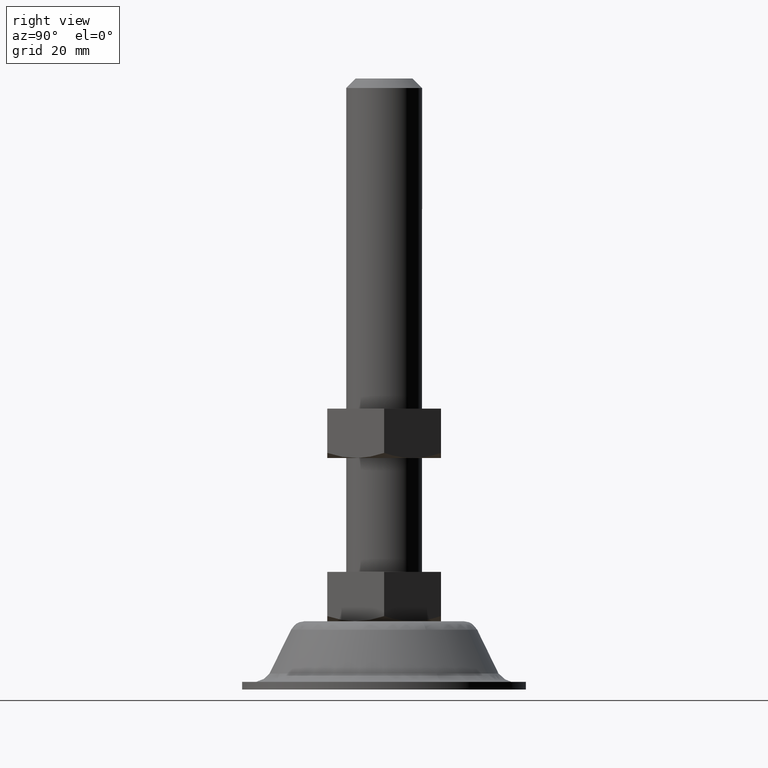
[diagram: clean part render]
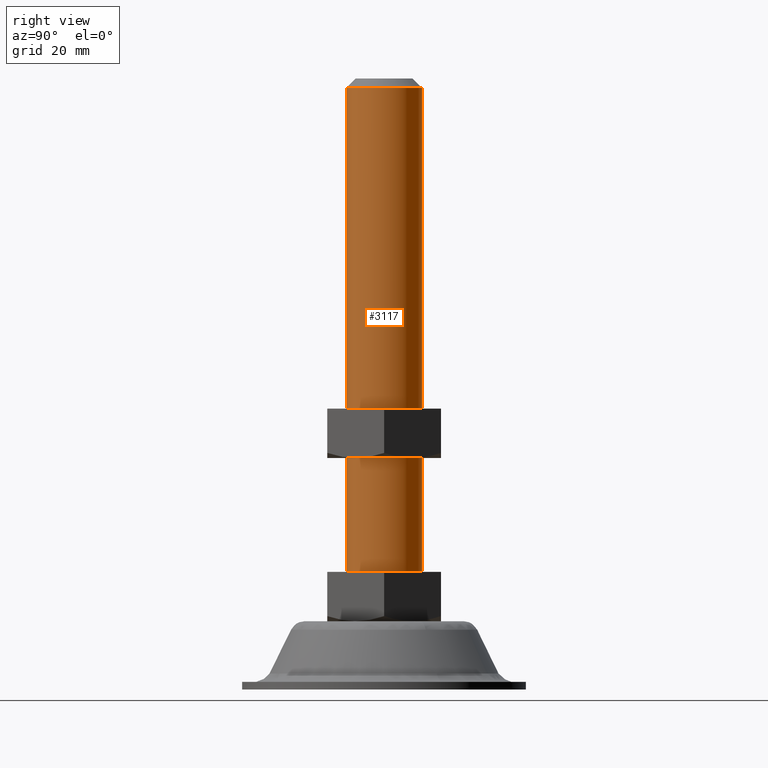
[diagram: same view with one face highlighted and labeled with its STEP entity id]
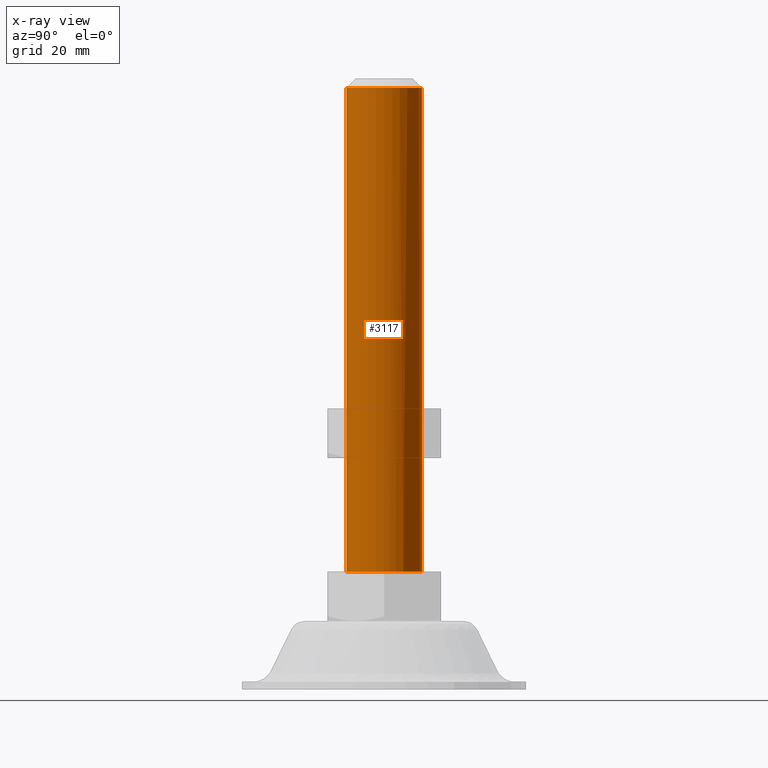
[diagram: x-ray of the same camera — body ghosted, the highlighted face saturated]
A machine part, right view. The second image highlights one B-rep face of the part: STEP entity #3117.
The next image is the same camera in x-ray: the body ghosted, the highlighted face saturated — about 0% of this face is hidden behind the body in this view.
In plain terms, the highlighted face is a freeform B-spline surface patch.
Its self-contained STEP definition (entity closure, byte-faithful):
#2848=CARTESIAN_POINT('',(0.087265356436887,9.999619230826861,158.499999999802100));
#2849=VERTEX_POINT('',#2848);
#2855=CARTESIAN_POINT('',(-0.610485395544084,9.981347984206710,158.500000000000000));
#2856=VERTEX_POINT('',#2855);
#2857=CARTESIAN_POINT('',(-0.610485395544084,9.981347984206710,158.499999999999940));
#2858=CARTESIAN_POINT('',(-0.305527633181951,9.999999999999998,158.500000000000000));
#2859=CARTESIAN_POINT('',(0.0,10.0,158.500000000000000));
#2860=CARTESIAN_POINT('',(0.043633509658495,10.0,158.500000000000060));
#2861=CARTESIAN_POINT('',(0.087265356436887,9.999619230826861,158.499999999802100));
#2869=(BOUNDED_CURVE()B_SPLINE_CURVE(2,(#2857,#2858,#2859,#2860,#2861),.UNSPECIFIED.,.F.,.U.)B_SPLINE_CURVE_WITH_KNOTS((3,2,3),(0.739332962235209,0.750000000000000,0.751539894386120),.UNSPECIFIED.)CURVE()GEOMETRIC_REPRESENTATION_ITEM()RATIONAL_B_SPLINE_CURVE((0.976072041658715,0.987502787895462,1.0,0.998195901506467,0.996414027982071))REPRESENTATION_ITEM(''));
#2870=EDGE_CURVE('',#2856,#2849,#2869,.T.);
#2910=CARTESIAN_POINT('',(1.180342346694434,-9.930095263621585,158.500000000000000));
#2911=VERTEX_POINT('',#2910);
#2927=CARTESIAN_POINT('',(10.0,0.0,158.500000000000000));
#2928=VERTEX_POINT('',#2927);
#2929=CARTESIAN_POINT('',(10.0,0.0,158.500000000000000));
#2930=CARTESIAN_POINT('',(9.999999999999998,-8.881745259285166,158.500000000000060));
#2931=CARTESIAN_POINT('',(1.180342346694435,-9.930095263621585,158.499999999999970));
#2939=(BOUNDED_CURVE()B_SPLINE_CURVE(2,(#2929,#2930,#2931),.UNSPECIFIED.,.F.,.U.)B_SPLINE_CURVE_WITH_KNOTS((3,3),(0.0,0.229562473511327),.UNSPECIFIED.)CURVE()GEOMETRIC_REPRESENTATION_ITEM()RATIONAL_B_SPLINE_CURVE((1.0,0.731050832857959,0.956026754179423))REPRESENTATION_ITEM(''));
#2940=EDGE_CURVE('',#2928,#2911,#2939,.T.);
#2942=CARTESIAN_POINT('',(0.087265356436887,9.999619230826861,158.499999999802130));
#2943=CARTESIAN_POINT('',(10.0,9.913112103071940,158.500000000000000));
#2944=CARTESIAN_POINT('',(10.0,0.0,158.500000000000000));
#2952=(BOUNDED_CURVE()B_SPLINE_CURVE(2,(#2942,#2943,#2944),.UNSPECIFIED.,.F.,.U.)B_SPLINE_CURVE_WITH_KNOTS((3,3),(0.751539894386121,1.0),.UNSPECIFIED.)CURVE()GEOMETRIC_REPRESENTATION_ITEM()RATIONAL_B_SPLINE_CURVE((0.996414027982069,0.708910879680082,1.0))REPRESENTATION_ITEM(''));
#2953=EDGE_CURVE('',#2849,#2928,#2952,.T.);
#3012=CARTESIAN_POINT('',(1.180342346694434,-9.930095263621585,31.000000000000011));
#3013=VERTEX_POINT('',#3012);
#3031=CARTESIAN_POINT('',(1.180342346694434,-9.930095263621585,158.500000000000000));
#3032=CARTESIAN_POINT('',(1.180342346694434,-9.930095263621585,31.000000000000011));
#3033=QUASI_UNIFORM_CURVE('',1,(#3031,#3032),.UNSPECIFIED.,.F.,.U.);
#3034=EDGE_CURVE('',#2911,#3013,#3033,.T.);
#3039=CARTESIAN_POINT('',(-0.610485395544084,9.981347984206710,30.999999999999989));
#3040=VERTEX_POINT('',#3039);
#3041=CARTESIAN_POINT('',(-0.610485395544084,9.981347984206710,158.500000000000000));
#3042=CARTESIAN_POINT('',(-0.610485395544084,9.981347984206710,30.999999999999989));
#3043=QUASI_UNIFORM_CURVE('',1,(#3041,#3042),.UNSPECIFIED.,.F.,.U.);
#3044=EDGE_CURVE('',#2856,#3040,#3043,.T.);
#3062=CARTESIAN_POINT('',(-0.610485395348570,9.981347984218667,161.687500000000000));
#3063=CARTESIAN_POINT('',(9.370862588870097,10.591833379567237,161.687499999999970));
#3064=CARTESIAN_POINT('',(9.981347984218667,0.610485395348570,161.687500000000000));
#3065=CARTESIAN_POINT('',(10.557861967325275,-8.815434908395007,161.687500000000110));
#3066=CARTESIAN_POINT('',(1.180342346567585,-9.930095263636664,161.687500000000060));
#3067=CARTESIAN_POINT('',(-0.610485395348570,9.981347984218667,27.732812499999991));
#3068=CARTESIAN_POINT('',(9.370862588870097,10.591833379567237,27.732812499999998));
#3069=CARTESIAN_POINT('',(9.981347984218667,0.610485395348570,27.732812499999991));
#3070=CARTESIAN_POINT('',(10.557861967325275,-8.815434908395007,27.732812500000001));
#3071=CARTESIAN_POINT('',(1.180342346567585,-9.930095263636664,27.732812499999998));
#3079=(BOUNDED_SURFACE()B_SPLINE_SURFACE(2,1,((#3062,#3067),(#3063,#3068),(#3064,#3069),(#3065,#3070),(#3066,#3071)),.UNSPECIFIED.,.F.,.F.,.U.)B_SPLINE_SURFACE_WITH_KNOTS((3,2,3),(2,2),(0.0,16.568542494923800,32.474343290050641),(0.0,133.954687500000090),.UNSPECIFIED.)GEOMETRIC_REPRESENTATION_ITEM()RATIONAL_B_SPLINE_SURFACE(((1.0,1.0),(0.707106781186548,0.707106781186548),(1.0,1.0),(0.718822509939086,0.718822509939086),(0.977505800795127,0.977505800795127)))REPRESENTATION_ITEM('')SURFACE());
#3080=CARTESIAN_POINT('',(10.0,0.0,31.0));
#3081=VERTEX_POINT('',#3080);
#3082=CARTESIAN_POINT('',(10.0,0.0,31.0));
#3083=CARTESIAN_POINT('',(9.999999999999998,-8.881745259285166,31.000000000000004));
#3084=CARTESIAN_POINT('',(1.180342346694433,-9.930095263621585,31.000000000000004));
#3092=(BOUNDED_CURVE()B_SPLINE_CURVE(2,(#3082,#3083,#3084),.UNSPECIFIED.,.F.,.U.)B_SPLINE_CURVE_WITH_KNOTS((3,3),(0.0,0.229562473511327),.UNSPECIFIED.)CURVE()GEOMETRIC_REPRESENTATION_ITEM()RATIONAL_B_SPLINE_CURVE((1.0,0.731050832857959,0.956026754179423))REPRESENTATION_ITEM(''));
#3093=EDGE_CURVE('',#3081,#3013,#3092,.T.);
#3094=ORIENTED_EDGE('',*,*,#3093,.F.);
#3095=CARTESIAN_POINT('',(-0.610485395544084,9.981347984206710,30.999999999999989));
#3096=CARTESIAN_POINT('',(-0.305527633181951,9.999999999999998,30.999999999999993));
#3097=CARTESIAN_POINT('',(0.0,10.0,31.0));
#3098=CARTESIAN_POINT('',(10.000000000000002,10.000000000000002,31.000000000000007));
#3099=CARTESIAN_POINT('',(10.0,0.0,31.0));
#3107=(BOUNDED_CURVE()B_SPLINE_CURVE(2,(#3095,#3096,#3097,#3098,#3099),.UNSPECIFIED.,.F.,.U.)B_SPLINE_CURVE_WITH_KNOTS((3,2,3),(0.739332962235209,0.750000000000000,1.0),.UNSPECIFIED.)CURVE()GEOMETRIC_REPRESENTATION_ITEM()RATIONAL_B_SPLINE_CURVE((0.976072041658715,0.987502787895462,1.0,0.707106781186548,1.0))REPRESENTATION_ITEM(''));
#3108=EDGE_CURVE('',#3040,#3081,#3107,.T.);
#3109=ORIENTED_EDGE('',*,*,#3108,.F.);
#3110=ORIENTED_EDGE('',*,*,#3044,.F.);
#3111=ORIENTED_EDGE('',*,*,#2870,.T.);
#3112=ORIENTED_EDGE('',*,*,#2953,.T.);
#3113=ORIENTED_EDGE('',*,*,#2940,.T.);
#3114=ORIENTED_EDGE('',*,*,#3034,.T.);
#3115=EDGE_LOOP('',(#3094,#3109,#3110,#3111,#3112,#3113,#3114));
#3116=FACE_OUTER_BOUND('',#3115,.T.);
#3117=ADVANCED_FACE('',(#3116),#3079,.T.);